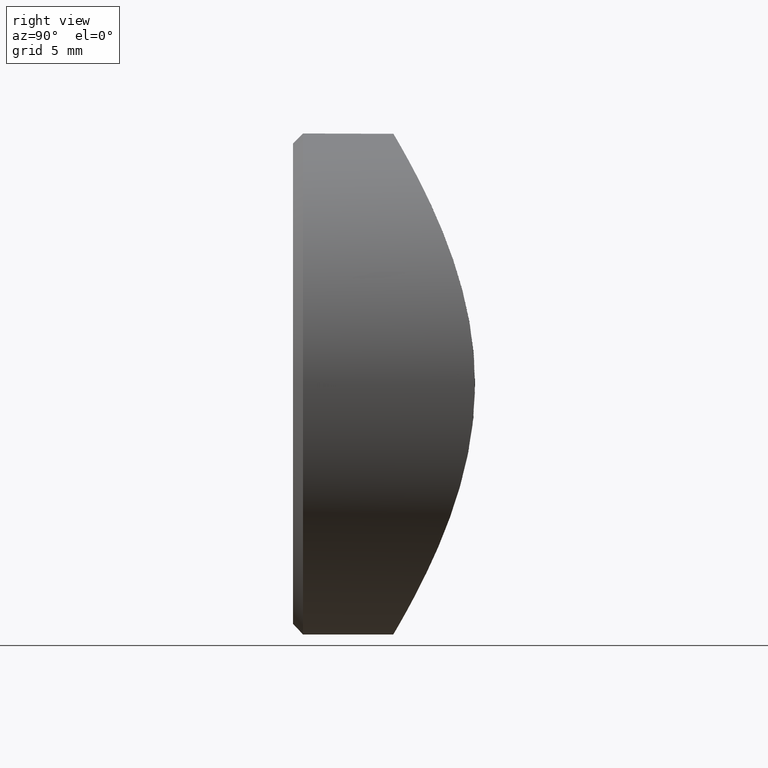
[diagram: clean part render]
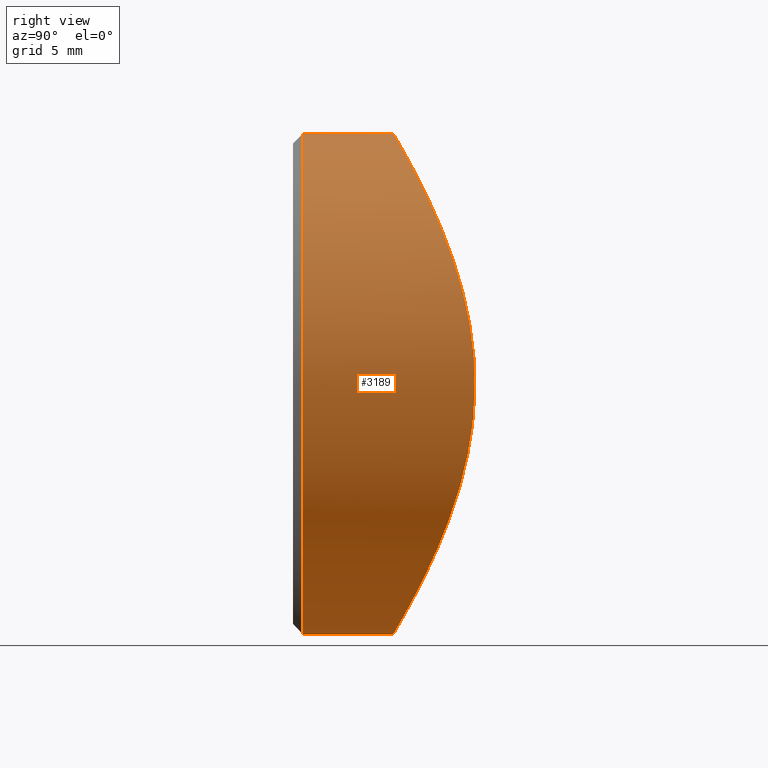
[diagram: same view with one face highlighted and labeled with its STEP entity id]
A machine part, right view. The second image highlights one B-rep face of the part: STEP entity #3189.
In plain terms, the highlighted cylindrical surface (bore or boss wall) has radius 12.5 mm, axis along (-0, -1, -0).
Its self-contained STEP definition (entity closure, byte-faithful):
#242 = CARTESIAN_POINT ( 'NONE',  ( 4.094339637555057365, 5.395195978876020426, -11.81778697094051012 ) ) ;
#284 = CARTESIAN_POINT ( 'NONE',  ( 8.566258207813087111, 6.805290870579106866, -9.111931178705395595 ) ) ;
#359 = CARTESIAN_POINT ( 'NONE',  ( 11.19805392773989183, 8.197391695942748413, 5.569304936125898386 ) ) ;
#398 = CARTESIAN_POINT ( 'NONE',  ( 8.586112571488605738, 6.814060524724989243, 9.093298611268730625 ) ) ;
#436 = CARTESIAN_POINT ( 'NONE',  ( -3.315778097450034601, 5.244980568409910227, -12.08060618271522380 ) ) ;
#513 = CARTESIAN_POINT ( 'NONE',  ( -5.616034635890288840, 5.754020286324120548, -11.17473504950745244 ) ) ;
#549 = CARTESIAN_POINT ( 'NONE',  ( -12.49929901301702273, 9.076696437272538276, 0.4410474172697078088 ) ) ;
#584 = CARTESIAN_POINT ( 'NONE',  ( -12.39063291684614221, 8.997818283286985519, 1.702516056501141462 ) ) ;
#1023 = DIRECTION ( 'NONE',  ( -0.000000000000000000, 1.000000000000000000, -0.000000000000000000 ) ) ;
#1152 = CARTESIAN_POINT ( 'NONE',  ( 12.47681261948977927, 9.060223238564544701, -0.8680168513804158437 ) ) ;
#1188 = CARTESIAN_POINT ( 'NONE',  ( 10.14524099158485271, 7.583349254718671162, -7.313280733592707250 ) ) ;
#1224 = CARTESIAN_POINT ( 'NONE',  ( 11.82618754708425435, 8.604462641009339663, 4.069672142910226498 ) ) ;
#1261 = CARTESIAN_POINT ( 'NONE',  ( 3.331865643065689220, 5.259623356017657514, 12.05485794112923870 ) ) ;
#1296 = CARTESIAN_POINT ( 'NONE',  ( 7.349014629886386096, 6.311426228007018580, 10.11940756783445217 ) ) ;
#1380 = CARTESIAN_POINT ( 'NONE',  ( -12.32689167703546396, 8.951863577055028998, 2.114099712051316082 ) ) ;
#1418 = CARTESIAN_POINT ( 'NONE',  ( -10.82241573850789962, 7.963275957336006350, -6.306171660458047334 ) ) ;
#1452 = CARTESIAN_POINT ( 'NONE',  ( -5.245974301967642361, 5.655580214384937854, -11.35345981449638408 ) ) ;
#1560 = FACE_OUTER_BOUND ( 'NONE', #8176, .T. ) ;
#2059 = CARTESIAN_POINT ( 'NONE',  ( -2.863592469743283075, 5.190269696929595611, 12.17469465744054169 ) ) ;
#2095 = CARTESIAN_POINT ( 'NONE',  ( 12.39108741169305539, 8.998146805373426815, -1.698605060607619732 ) ) ;
#2132 = CARTESIAN_POINT ( 'NONE',  ( 11.37245882308105749, 8.307482129818948735, 5.204074967692459808 ) ) ;
#2173 = CARTESIAN_POINT ( 'NONE',  ( 5.647795805536169667, 5.751363379545573196, 11.18159297971594590 ) ) ;
#2207 = CARTESIAN_POINT ( 'NONE',  ( 8.272028121311569393, 6.677599528267620599, -9.379946797398345026 ) ) ;
#2356 = CARTESIAN_POINT ( 'NONE',  ( -12.17098533677777006, 8.841505016409652029, -2.879517635772013140 ) ) ;
#2384 = CARTESIAN_POINT ( 'NONE',  ( -12.41862256727138458, 9.016905337360775263, -1.651010921461087078 ) ) ;
#2943 = CARTESIAN_POINT ( 'NONE',  ( 2.932244745556737975, 5.199808299411353474, 12.15823469850293215 ) ) ;
#2979 = CARTESIAN_POINT ( 'NONE',  ( 8.288303705805668997, 6.684478256313675537, 9.365662362664572527 ) ) ;
#3019 = CARTESIAN_POINT ( 'NONE',  ( 11.66958765553431832, 8.499831427303684350, -4.498265373404223055 ) ) ;
#3062 = CARTESIAN_POINT ( 'NONE',  ( 4.513171299523977886, 5.482317477689297114, 11.66405545157511980 ) ) ;
#3149 = CARTESIAN_POINT ( 'NONE',  ( -12.05651672621448256, 8.761463530639835184, 3.325840788934108172 ) ) ;
#3189 = ADVANCED_FACE ( 'NONE', ( #1560, #8023 ), #3248, .T. ) ;
#3222 = CARTESIAN_POINT ( 'NONE',  ( -9.913942447428349070, 7.453907114243851773, 7.655162277585185748 ) ) ;
#3248 = CYLINDRICAL_SURFACE ( 'NONE', #9402, 12.50000000000000000 ) ;
#3256 = CARTESIAN_POINT ( 'NONE',  ( -12.06737213083675009, 8.768988916291720059, -3.286140337371728393 ) ) ;
#3294 = CARTESIAN_POINT ( 'NONE',  ( -11.19067784627403483, 8.190226841971355753, 5.628647762989838377 ) ) ;
#3852 = CARTESIAN_POINT ( 'NONE',  ( -3.269966712130724318, 5.249793082120177701, 12.07191968146351790 ) ) ;
#3892 = CARTESIAN_POINT ( 'NONE',  ( 9.127992693157246151, 7.063248152012964631, -8.549141411981464600 ) ) ;
#3932 = CARTESIAN_POINT ( 'NONE',  ( 11.68652277004576945, 8.511014699462716493, 4.454256559431580165 ) ) ;
#3968 = CARTESIAN_POINT ( 'NONE',  ( 9.430314418311287028, 7.202813795485583093, 8.243591745573995766 ) ) ;
#4011 = CARTESIAN_POINT ( 'NONE',  ( 7.655695992828436047, 6.427774827201249153, -9.889396848503119841 ) ) ;
#4043 = CARTESIAN_POINT ( 'NONE',  ( -2.099102775880445471, 5.100223378463153878, -12.32944139325207189 ) ) ;
#4115 = CARTESIAN_POINT ( 'NONE',  ( -12.15983515392658099, 8.833685551873173836, 2.925762300528361948 ) ) ;
#4151 = CARTESIAN_POINT ( 'NONE',  ( -1.687338429905864023, 5.063100790062737389, -12.39272775788955805 ) ) ;
#4187 = CARTESIAN_POINT ( 'NONE',  ( -11.82444322885114651, 8.603291220454529764, -4.074644866570976021 ) ) ;
#4735 = CARTESIAN_POINT ( 'NONE',  ( 1.572093150103981429E-15, 5.000000000000002665, -12.50000000000000533 ) ) ;
#4767 = CARTESIAN_POINT ( 'NONE',  ( 12.49919501678331457, 9.076620518322576103, -0.4461438054100652639 ) ) ;
#4809 = CARTESIAN_POINT ( 'NONE',  ( 2.895755586259734837, 5.194712429987408342, -12.16702997625449001 ) ) ;
#4842 = CARTESIAN_POINT ( 'NONE',  ( 10.60481078463473281, 7.841250019548180461, 6.629404056392552036 ) ) ;
#4882 = CARTESIAN_POINT ( 'NONE',  ( 0.8833824490581015931, 5.014333990146249143, 12.47572337239282625 ) ) ;
#4921 = CARTESIAN_POINT ( 'NONE',  ( -4.455185756930840846, 5.469783993594124816, 11.68627895251742466 ) ) ;
#4964 = CARTESIAN_POINT ( 'NONE',  ( -7.656642738274349824, 6.428132564740860921, -9.888690997172561836 ) ) ;
#4996 = CARTESIAN_POINT ( 'NONE',  ( -11.21211515089159327, 8.203628649496739200, -5.585867048144680602 ) ) ;
#5037 = CARTESIAN_POINT ( 'NONE',  ( -0.4235341031968348213, 5.000000000000003553, -12.50000000000000711 ) ) ;
#5074 = CARTESIAN_POINT ( 'NONE',  ( -9.928336298212721900, 7.461512212161455437, -7.636793946274798905 ) ) ;
#5258 = B_SPLINE_CURVE_WITH_KNOTS ( 'NONE', 3,
 ( #4735, #9334, #5710, #4809, #5632, #242, #6544, #7589, #10175, #10213, #4011, #2207, #284, #3892, #8489, #10140, #1188, #10249, #8411, #3019, #5748, #8332, #7463, #5675, #2095, #1152, #4767, #9290, #9374, #11066, #6584, #1224, #3932, #2132, #359, #8373, #4842, #7546, #3968, #398, #2979, #6624, #1296, #10101, #2173, #3062, #7429, #1261, #2943, #8449, #11108, #4882, #11151, #9250, #6502, #2059, #3852, #11026, #4921, #9415, #8682, #6742, #5869, #7769, #10353, #7734, #3222, #11193, #3294, #5953, #9490, #3149, #4115, #1380, #584, #5910, #549, #9526, #2384, #2356, #3256, #4187, #7662, #4996, #1418, #5074, #6784, #6818, #10319, #4964, #10287, #5825, #8646, #513, #1452, #5787, #436, #4043, #4151, #10386, #5037, #6706 ),
 .UNSPECIFIED., .T., .F.,
 ( 4, 2, 2, 2, 2, 2, 2, 2, 2, 2, 2, 2, 2, 2, 2, 2, 2, 2, 2, 2, 2, 2, 2, 2, 2, 2, 2, 2, 2, 2, 2, 2, 2, 2, 2, 2, 2, 2, 2, 2, 2, 2, 2, 2, 2, 2, 2, 2, 2, 2, 4 ),
 ( 0.000000000000000000, 0.002501514599363625826, 0.003752271899045439823, 0.005003029198727253386, 0.007504543798090876176, 0.008755301097772685837, 0.01000605839745449810, 0.01125681569713630863, 0.01250757299681811742, 0.01500908759618174021, 0.01625984489586355247, 0.01751060219554536126, 0.01876135949522717353, 0.02001211679490898232, 0.02251363139427260338, 0.02376438869395441217, 0.02501514599363622096, 0.02626590329331802975, 0.02751666059299983855, 0.03001817519236345960, 0.03126893249204526493, 0.03251968979172707719, 0.03502120439109069477, 0.03627196169077250010, 0.03752271899045431236, 0.03877347629013611768, 0.04002423358981792995, 0.04252574818918154753, 0.04377650548886334592, 0.04502726278854515124, 0.04627802008822694962, 0.04752877738790876189, 0.05003029198727237947, 0.05253180658663599706, 0.05503332118599961464, 0.05628407848568141303, 0.05753483578536321835, 0.05878559308504502368, 0.06003635038472682900, 0.06253786498409044659, 0.06378862228377224497, 0.06503937958345405723, 0.06754089418281766788, 0.07004240878218129240, 0.07129316608186309079, 0.07254392338154490305, 0.07379468068122670144, 0.07504543798090849982, 0.07754695258027212434, 0.07879770987995393661, 0.08004846717963574887 ),
 .UNSPECIFIED. ) ;
#5632 = CARTESIAN_POINT ( 'NONE',  ( 3.298053735012402843, 5.254204980808160563, -12.06426738426982226 ) ) ;
#5675 = CARTESIAN_POINT ( 'NONE',  ( 12.32774798319113252, 8.952476634001637734, -2.109115320088166712 ) ) ;
#5710 = CARTESIAN_POINT ( 'NONE',  ( 1.676423256818145857, 5.050540661257573838, -12.41481697399196449 ) ) ;
#5748 = CARTESIAN_POINT ( 'NONE',  ( 11.81060179249552000, 8.593979925823784782, -4.114783437603610317 ) ) ;
#5787 = CARTESIAN_POINT ( 'NONE',  ( -4.102223697870059027, 5.385930634531378658, -11.83667796629568159 ) ) ;
#5825 = CARTESIAN_POINT ( 'NONE',  ( -6.672538813375512134, 6.074371047319107930, -10.57770685352647710 ) ) ;
#5869 = CARTESIAN_POINT ( 'NONE',  ( -6.644218292355433597, 6.064923310656248567, 10.59569941213782229 ) ) ;
#5910 = CARTESIAN_POINT ( 'NONE',  ( -12.47695839651495398, 9.060328210071190824, 0.8670952510020283333 ) ) ;
#5953 = CARTESIAN_POINT ( 'NONE',  ( -11.66738621306040891, 8.498364512820513639, 4.504201985925215368 ) ) ;
#6302 = CARTESIAN_POINT ( 'NONE',  ( 0.000000000000000000, 5.000000000000000888, -12.50000000000000000 ) ) ;
#6356 = ORIENTED_EDGE ( 'NONE', *, *, #8352, .T. ) ;
#6502 = CARTESIAN_POINT ( 'NONE',  ( -1.638860176161355930, 5.047462225891351295, 12.42004608130415910 ) ) ;
#6544 = CARTESIAN_POINT ( 'NONE',  ( 4.482805620984363415, 5.475753825394668262, -11.67569245670671663 ) ) ;
#6558 = CIRCLE ( 'NONE', #10004, 12.50000000000000000 ) ;
#6584 = CARTESIAN_POINT ( 'NONE',  ( 12.06926384379494976, 8.770297847659280777, 3.279300766696196412 ) ) ;
#6624 = CARTESIAN_POINT ( 'NONE',  ( 7.669388386453538153, 6.433056659521247944, 9.878870967313789109 ) ) ;
#6706 = CARTESIAN_POINT ( 'NONE',  ( 1.572093150103981429E-15, 5.000000000000002665, -12.50000000000000533 ) ) ;
#6742 = CARTESIAN_POINT ( 'NONE',  ( -6.294409402135960896, 5.952543933865495518, 10.80721504654117382 ) ) ;
#6784 = CARTESIAN_POINT ( 'NONE',  ( -9.422887049072551591, 7.198982595083049496, -8.252556896111416407 ) ) ;
#6807 = VERTEX_POINT ( 'NONE', #7214 ) ;
#6818 = CARTESIAN_POINT ( 'NONE',  ( -8.572369642296433057, 6.807943780861746674, -9.106363304394257341 ) ) ;
#6928 = EDGE_CURVE ( 'NONE', #6807, #6807, #6558, .T. ) ;
#7214 = CARTESIAN_POINT ( 'NONE',  ( 0.000000000000000000, 0.5000000000000056621, 12.50000000000000000 ) ) ;
#7429 = CARTESIAN_POINT ( 'NONE',  ( 4.121136849898210386, 5.400554485282699879, 11.80835126970143101 ) ) ;
#7463 = CARTESIAN_POINT ( 'NONE',  ( 12.16098486383601518, 8.834491664817763379, -2.920990399171967677 ) ) ;
#7518 = VERTEX_POINT ( 'NONE', #6302 ) ;
#7546 = CARTESIAN_POINT ( 'NONE',  ( 9.934289938956274213, 7.464666165255247066, 7.629149565451515791 ) ) ;
#7589 = CARTESIAN_POINT ( 'NONE',  ( 5.613481757731692667, 5.742030268858448139, -11.19857959172153805 ) ) ;
#7662 = CARTESIAN_POINT ( 'NONE',  ( -11.68467236997706848, 8.509786361046645098, -4.459180509397983272 ) ) ;
#7734 = CARTESIAN_POINT ( 'NONE',  ( -9.398413120064487813, 7.186967464775806391, 8.279877921936988017 ) ) ;
#7743 = CARTESIAN_POINT ( 'NONE',  ( 0.000000000000000000, 12.00000000000000000, 0.000000000000000000 ) ) ;
#7769 = CARTESIAN_POINT ( 'NONE',  ( -7.653510990891769339, 6.416886758621692444, 9.916234189837000557 ) ) ;
#7812 = DIRECTION ( 'NONE',  ( 0.000000000000000000, 0.000000000000000000, -1.000000000000000000 ) ) ;
#7973 = EDGE_LOOP ( 'NONE', ( #6356 ) ) ;
#8023 = FACE_OUTER_BOUND ( 'NONE', #7973, .T. ) ;
#8176 = EDGE_LOOP ( 'NONE', ( #8995 ) ) ;
#8332 = CARTESIAN_POINT ( 'NONE',  ( 12.05721564495491549, 8.761943673555569134, -3.323448259011979822 ) ) ;
#8352 = EDGE_CURVE ( 'NONE', #7518, #7518, #5258, .T. ) ;
#8373 = CARTESIAN_POINT ( 'NONE',  ( 10.81462088491997697, 7.964477176857956309, 6.281524047202232452 ) ) ;
#8411 = CARTESIAN_POINT ( 'NONE',  ( 11.19665781067259580, 8.194005773660666847, -5.616006014043237293 ) ) ;
#8449 = CARTESIAN_POINT ( 'NONE',  ( 2.122925318285208363, 5.102623414218037112, 12.32533643860115546 ) ) ;
#8489 = CARTESIAN_POINT ( 'NONE',  ( 9.395496338682260529, 7.193522640550361835, -8.254370419255691260 ) ) ;
#8646 = CARTESIAN_POINT ( 'NONE',  ( -6.328732849168195784, 5.963274177688119515, -10.78710753548276813 ) ) ;
#8682 = CARTESIAN_POINT ( 'NONE',  ( -5.578413543441999245, 5.743696100954909234, 11.19360483143060314 ) ) ;
#8995 = ORIENTED_EDGE ( 'NONE', *, *, #6928, .T. ) ;
#9057 = CARTESIAN_POINT ( 'NONE',  ( 0.000000000000000000, 0.5000000000000056621, 0.000000000000000000 ) ) ;
#9250 = CARTESIAN_POINT ( 'NONE',  ( -0.8079972989937805883, 4.998513916675149105, 12.50252040504168782 ) ) ;
#9290 = CARTESIAN_POINT ( 'NONE',  ( 12.50154562933544966, 9.078336510663104875, 0.8228233883339811650 ) ) ;
#9334 = CARTESIAN_POINT ( 'NONE',  ( 0.8470682063936681994, 5.000000000000000000, -12.49999999999999822 ) ) ;
#9374 = CARTESIAN_POINT ( 'NONE',  ( 12.41812779546616063, 9.016564903767340766, 1.652267132855542053 ) ) ;
#9402 = AXIS2_PLACEMENT_3D ( 'NONE', #7743, #10433, #7812 ) ;
#9415 = CARTESIAN_POINT ( 'NONE',  ( -5.210731716249695999, 5.646683703541289567, 11.36952377481486920 ) ) ;
#9490 = CARTESIAN_POINT ( 'NONE',  ( -11.81049691516648892, 8.593912632855165157, 4.114969640188157918 ) ) ;
#9526 = CARTESIAN_POINT ( 'NONE',  ( -12.50135234802644923, 9.078195412194805414, -0.8210871055179241873 ) ) ;
#10004 = AXIS2_PLACEMENT_3D ( 'NONE', #9057, #1023, #11575 ) ;
#10101 = CARTESIAN_POINT ( 'NONE',  ( 6.354645177679544510, 5.962608480267060251, 10.79398846037511639 ) ) ;
#10140 = CARTESIAN_POINT ( 'NONE',  ( 9.903986597291352112, 7.453464785562725403, -7.636820801167754524 ) ) ;
#10175 = CARTESIAN_POINT ( 'NONE',  ( 6.324834532464548964, 5.952949940773299531, -10.81220636182570161 ) ) ;
#10213 = CARTESIAN_POINT ( 'NONE',  ( 7.332620007982915133, 6.305294025557941495, -10.13148648456724743 ) ) ;
#10249 = CARTESIAN_POINT ( 'NONE',  ( 10.81544325717643318, 7.959150618809808897, -6.317922650166285514 ) ) ;
#10287 = CARTESIAN_POINT ( 'NONE',  ( -7.336495361996330900, 6.306796367593365815, -10.12849901508363359 ) ) ;
#10319 = CARTESIAN_POINT ( 'NONE',  ( -8.273932753175506249, 6.678397691404537539, -9.378295391757530908 ) ) ;
#10353 = CARTESIAN_POINT ( 'NONE',  ( -8.269473890835500995, 6.669475764084465297, 9.407568716005741294 ) ) ;
#10386 = CARTESIAN_POINT ( 'NONE',  ( -0.8507025057337239682, 5.012930253694305449, -12.47810552547708873 ) ) ;
#10433 = DIRECTION ( 'NONE',  ( -0.000000000000000000, -1.000000000000000000, -0.000000000000000000 ) ) ;
#11026 = CARTESIAN_POINT ( 'NONE',  ( -4.067326027178807202, 5.389889207669833482, 11.82712078583723070 ) ) ;
#11066 = CARTESIAN_POINT ( 'NONE',  ( 12.17228595876718167, 8.842421267620830250, 2.873660678248262546 ) ) ;
#11108 = CARTESIAN_POINT ( 'NONE',  ( 1.713227552535517173, 5.065249937943206326, 12.38906330474607209 ) ) ;
#11151 = CARTESIAN_POINT ( 'NONE',  ( 0.4611387444794077806, 5.000794378031764964, 12.49865273086488315 ) ) ;
#11193 = CARTESIAN_POINT ( 'NONE',  ( -10.80751170322993637, 7.954454129380865268, 6.331307537281122499 ) ) ;
#11575 = DIRECTION ( 'NONE',  ( 0.000000000000000000, 0.000000000000000000, 1.000000000000000000 ) ) ;